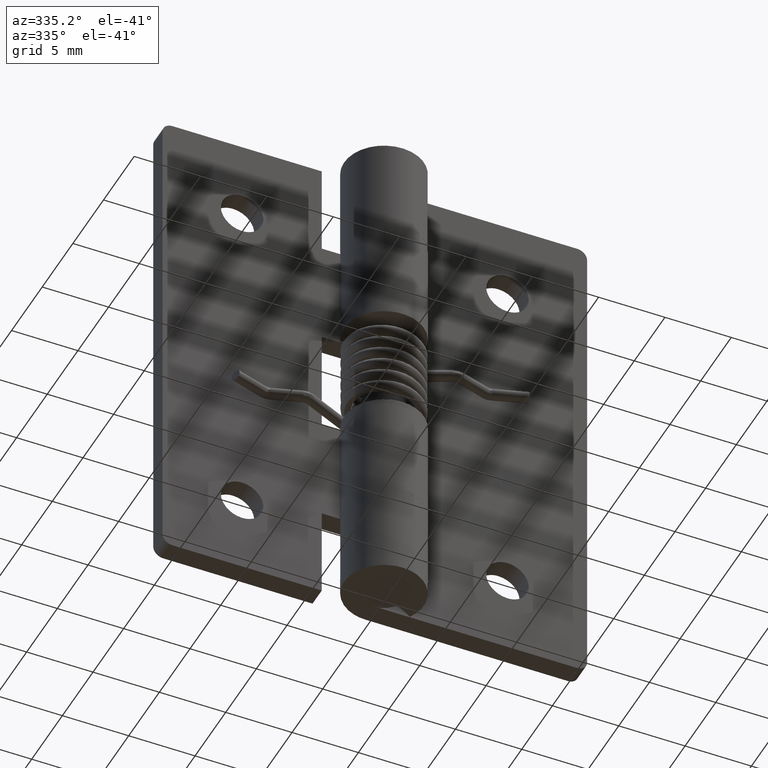
[diagram: clean part render]
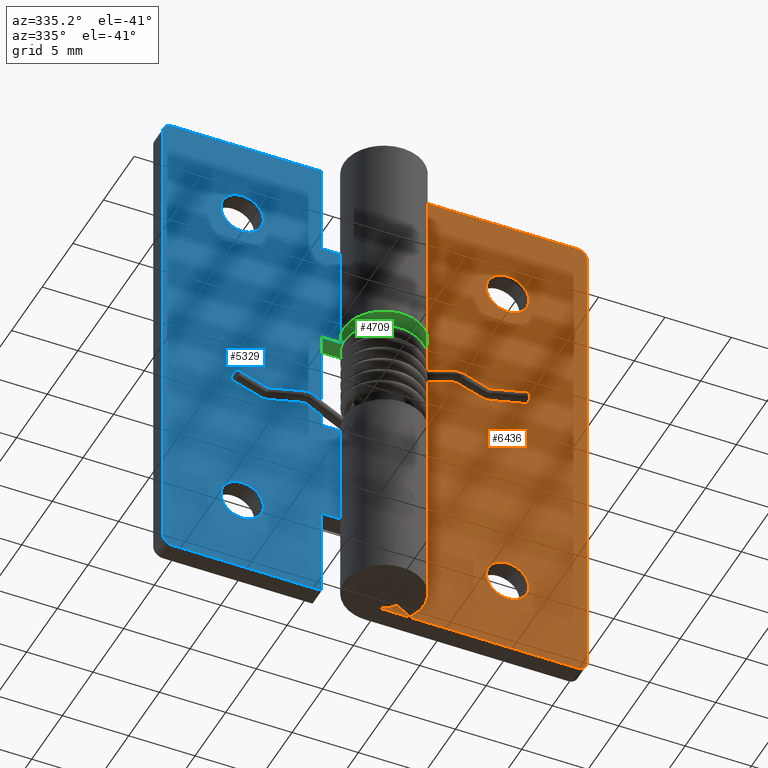
[diagram: same view with three faces highlighted in distinct colors, each labeled with its STEP entity id]
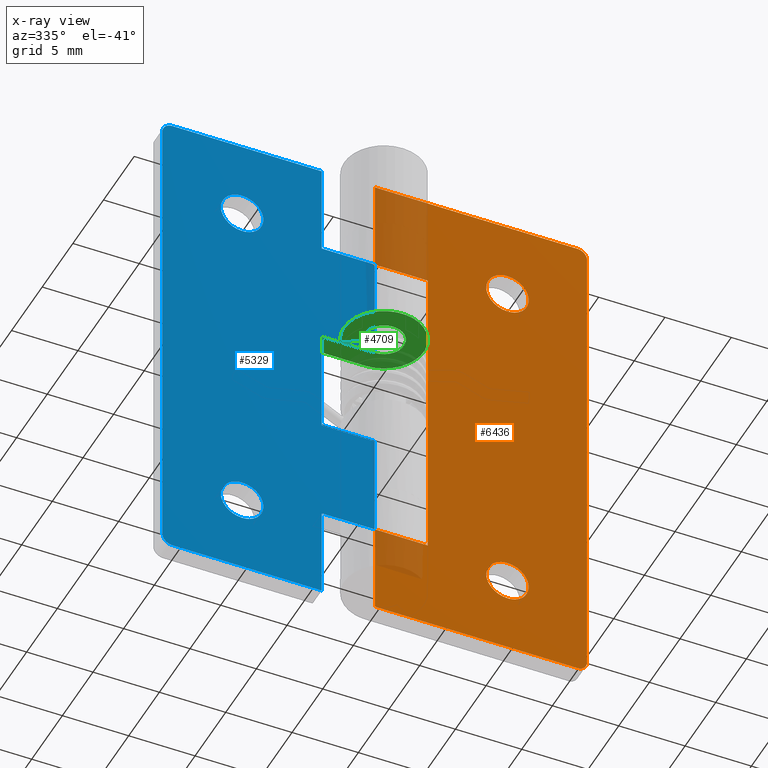
[diagram: x-ray of the same camera — body ghosted, the three highlighted faces saturated]
A machine part, auxiliary view with three faces highlighted in distinct colors.
The next image is the same camera in x-ray (body ghosted, the three faces saturated) — at least one of them is partly hidden behind the body in this view.
Their STEP definitions:

[orange] entity #6436 — the highlighted face is a freeform B-spline surface patch.
#5427=CARTESIAN_POINT('',(11.588815242173940,1.500000000000000,6.188854775517521));
#5428=VERTEX_POINT('',#5427);
#5429=CARTESIAN_POINT('',(10.0,1.500000000000000,4.400000000000000));
#5430=VERTEX_POINT('',#5429);
#5431=CARTESIAN_POINT('',(11.588815242173935,1.500000000000000,6.188854775517521));
#5432=CARTESIAN_POINT('',(11.600000000000007,1.500000000000000,6.094758591510471));
#5433=CARTESIAN_POINT('',(11.600000000000000,1.500000000000000,6.0));
#5434=CARTESIAN_POINT('',(11.600000000000001,1.500000000000000,4.400000000000001));
#5435=CARTESIAN_POINT('',(10.0,1.500000000000000,4.400000000000000));
#5443=(BOUNDED_CURVE()B_SPLINE_CURVE(2,(#5431,#5432,#5433,#5434,#5435),.UNSPECIFIED.,.F.,.U.)B_SPLINE_CURVE_WITH_KNOTS((3,2,3),(0.229562473501453,0.250000000000000,0.500000000000000),.UNSPECIFIED.)CURVE()GEOMETRIC_REPRESENTATION_ITEM()RATIONAL_B_SPLINE_CURVE((0.956026754160070,0.976055948317021,1.0,0.707106781186548,1.0))REPRESENTATION_ITEM(''));
#5444=EDGE_CURVE('',#5428,#5430,#5443,.T.);
#5485=CARTESIAN_POINT('',(8.402984322530001,1.500000000000000,5.902322336662665));
#5486=VERTEX_POINT('',#5485);
#5492=CARTESIAN_POINT('',(10.0,1.500000000000000,4.400000000000000));
#5493=CARTESIAN_POINT('',(8.494870293104919,1.500000000000000,4.400000000000000));
#5494=CARTESIAN_POINT('',(8.402984322530001,1.500000000000000,5.902322336662665));
#5502=(BOUNDED_CURVE()B_SPLINE_CURVE(2,(#5492,#5493,#5494),.UNSPECIFIED.,.F.,.U.)B_SPLINE_CURVE_WITH_KNOTS((3,3),(0.500000000000000,0.739332962224343),.UNSPECIFIED.)CURVE()GEOMETRIC_REPRESENTATION_ITEM()RATIONAL_B_SPLINE_CURVE((1.0,0.719603993303815,0.976072041635428))REPRESENTATION_ITEM(''));
#5503=EDGE_CURVE('',#5430,#5486,#5502,.T.);
#5526=CARTESIAN_POINT('',(10.0,1.500000000000000,7.600000000000000));
#5527=VERTEX_POINT('',#5526);
#5528=CARTESIAN_POINT('',(10.0,1.500000000000000,7.600000000000000));
#5529=CARTESIAN_POINT('',(11.421079241402021,1.500000000000001,7.599999999999999));
#5530=CARTESIAN_POINT('',(11.588815242173933,1.500000000000000,6.188854775517521));
#5538=(BOUNDED_CURVE()B_SPLINE_CURVE(2,(#5528,#5529,#5530),.UNSPECIFIED.,.F.,.U.)B_SPLINE_CURVE_WITH_KNOTS((3,3),(0.0,0.229562473501453),.UNSPECIFIED.)CURVE()GEOMETRIC_REPRESENTATION_ITEM()RATIONAL_B_SPLINE_CURVE((1.0,0.731050832869526,0.956026754160070))REPRESENTATION_ITEM(''));
#5539=EDGE_CURVE('',#5527,#5428,#5538,.T.);
#5541=CARTESIAN_POINT('',(8.402984322530001,1.500000000000000,5.902322336662665));
#5542=CARTESIAN_POINT('',(8.399999999999999,1.500000000000000,5.951115578640466));
#5543=CARTESIAN_POINT('',(8.400000000000000,1.500000000000000,6.0));
#5544=CARTESIAN_POINT('',(8.400000000000000,1.500000000000000,7.600000000000000));
#5545=CARTESIAN_POINT('',(10.0,1.500000000000000,7.600000000000000));
#5553=(BOUNDED_CURVE()B_SPLINE_CURVE(2,(#5541,#5542,#5543,#5544,#5545),.UNSPECIFIED.,.F.,.U.)B_SPLINE_CURVE_WITH_KNOTS((3,2,3),(0.739332962224343,0.750000000000000,1.0),.UNSPECIFIED.)CURVE()GEOMETRIC_REPRESENTATION_ITEM()RATIONAL_B_SPLINE_CURVE((0.976072041635428,0.987502787882733,1.0,0.707106781186548,1.0))REPRESENTATION_ITEM(''));
#5554=EDGE_CURVE('',#5486,#5527,#5553,.T.);
#5613=CARTESIAN_POINT('',(11.588815242173940,1.500000000000000,32.188854775517520));
#5614=VERTEX_POINT('',#5613);
#5615=CARTESIAN_POINT('',(10.0,1.500000000000000,30.399999999999999));
#5616=VERTEX_POINT('',#5615);
#5617=CARTESIAN_POINT('',(11.588815242173935,1.500000000000000,32.188854775517520));
#5618=CARTESIAN_POINT('',(11.600000000000007,1.500000000000000,32.094758591510470));
#5619=CARTESIAN_POINT('',(11.600000000000000,1.500000000000000,32.0));
#5620=CARTESIAN_POINT('',(11.600000000000001,1.500000000000000,30.400000000000002));
#5621=CARTESIAN_POINT('',(10.0,1.500000000000000,30.399999999999999));
#5629=(BOUNDED_CURVE()B_SPLINE_CURVE(2,(#5617,#5618,#5619,#5620,#5621),.UNSPECIFIED.,.F.,.U.)B_SPLINE_CURVE_WITH_KNOTS((3,2,3),(0.229562473501453,0.250000000000000,0.500000000000000),.UNSPECIFIED.)CURVE()GEOMETRIC_REPRESENTATION_ITEM()RATIONAL_B_SPLINE_CURVE((0.956026754160070,0.976055948317021,1.0,0.707106781186548,1.0))REPRESENTATION_ITEM(''));
#5630=EDGE_CURVE('',#5614,#5616,#5629,.T.);
#5671=CARTESIAN_POINT('',(8.402984322530003,1.500000000000000,31.902322336662671));
#5672=VERTEX_POINT('',#5671);
#5678=CARTESIAN_POINT('',(10.0,1.500000000000000,30.399999999999999));
#5679=CARTESIAN_POINT('',(8.494870293104919,1.500000000000000,30.399999999999999));
#5680=CARTESIAN_POINT('',(8.402984322530003,1.500000000000000,31.902322336662671));
#5688=(BOUNDED_CURVE()B_SPLINE_CURVE(2,(#5678,#5679,#5680),.UNSPECIFIED.,.F.,.U.)B_SPLINE_CURVE_WITH_KNOTS((3,3),(0.500000000000000,0.739332962224343),.UNSPECIFIED.)CURVE()GEOMETRIC_REPRESENTATION_ITEM()RATIONAL_B_SPLINE_CURVE((1.0,0.719603993303815,0.976072041635428))REPRESENTATION_ITEM(''));
#5689=EDGE_CURVE('',#5616,#5672,#5688,.T.);
#5712=CARTESIAN_POINT('',(10.0,1.500000000000000,33.600000000000001));
#5713=VERTEX_POINT('',#5712);
#5714=CARTESIAN_POINT('',(10.0,1.500000000000000,33.600000000000001));
#5715=CARTESIAN_POINT('',(11.421079241402019,1.500000000000000,33.600000000000001));
#5716=CARTESIAN_POINT('',(11.588815242173935,1.500000000000000,32.188854775517520));
#5724=(BOUNDED_CURVE()B_SPLINE_CURVE(2,(#5714,#5715,#5716),.UNSPECIFIED.,.F.,.U.)B_SPLINE_CURVE_WITH_KNOTS((3,3),(0.0,0.229562473501453),.UNSPECIFIED.)CURVE()GEOMETRIC_REPRESENTATION_ITEM()RATIONAL_B_SPLINE_CURVE((1.0,0.731050832869527,0.956026754160070))REPRESENTATION_ITEM(''));
#5725=EDGE_CURVE('',#5713,#5614,#5724,.T.);
#5727=CARTESIAN_POINT('',(8.402984322530003,1.500000000000000,31.902322336662671));
#5728=CARTESIAN_POINT('',(8.400000000000002,1.500000000000000,31.951115578640469));
#5729=CARTESIAN_POINT('',(8.400000000000000,1.500000000000000,32.0));
#5730=CARTESIAN_POINT('',(8.400000000000000,1.500000000000000,33.600000000000001));
#5731=CARTESIAN_POINT('',(10.0,1.500000000000000,33.600000000000001));
#5739=(BOUNDED_CURVE()B_SPLINE_CURVE(2,(#5727,#5728,#5729,#5730,#5731),.UNSPECIFIED.,.F.,.U.)B_SPLINE_CURVE_WITH_KNOTS((3,2,3),(0.739332962224344,0.750000000000000,1.0),.UNSPECIFIED.)CURVE()GEOMETRIC_REPRESENTATION_ITEM()RATIONAL_B_SPLINE_CURVE((0.976072041635429,0.987502787882733,1.0,0.707106781186548,1.0))REPRESENTATION_ITEM(''));
#5740=EDGE_CURVE('',#5672,#5713,#5739,.T.);
#5791=CARTESIAN_POINT('',(16.0,1.500000000000055,37.250000000000000));
#5792=VERTEX_POINT('',#5791);
#5793=CARTESIAN_POINT('',(15.250000000000000,1.500000000000055,38.0));
#5794=VERTEX_POINT('',#5793);
#5795=CARTESIAN_POINT('',(16.0,1.500000000000055,37.250000000000000));
#5796=CARTESIAN_POINT('',(15.999999999999998,1.500000000000055,38.0));
#5797=CARTESIAN_POINT('',(15.250000000000000,1.500000000000055,38.0));
#5805=(BOUNDED_CURVE()B_SPLINE_CURVE(2,(#5795,#5796,#5797),.UNSPECIFIED.,.F.,.U.)CURVE()GEOMETRIC_REPRESENTATION_ITEM()QUASI_UNIFORM_CURVE()RATIONAL_B_SPLINE_CURVE((1.0,0.707106781186548,1.0))REPRESENTATION_ITEM(''));
#5806=EDGE_CURVE('',#5792,#5794,#5805,.T.);
#5852=CARTESIAN_POINT('',(15.250000000000000,1.500000000000000,0.0));
#5853=VERTEX_POINT('',#5852);
#5854=CARTESIAN_POINT('',(16.0,1.500000000000055,0.750000000000000));
#5855=VERTEX_POINT('',#5854);
#5856=CARTESIAN_POINT('',(15.250000000000000,1.500000000000000,0.0));
#5857=CARTESIAN_POINT('',(15.999999999999998,1.500000000000055,0.0));
#5858=CARTESIAN_POINT('',(16.0,1.500000000000055,0.750000000000000));
#5866=(BOUNDED_CURVE()B_SPLINE_CURVE(2,(#5856,#5857,#5858),.UNSPECIFIED.,.F.,.U.)CURVE()GEOMETRIC_REPRESENTATION_ITEM()QUASI_UNIFORM_CURVE()RATIONAL_B_SPLINE_CURVE((1.0,0.707106781186548,1.0))REPRESENTATION_ITEM(''));
#5867=EDGE_CURVE('',#5853,#5855,#5866,.T.);
#5934=CARTESIAN_POINT('',(0.0,1.500000000000000,6.999992000000000));
#5935=VERTEX_POINT('',#5934);
#5955=CARTESIAN_POINT('',(4.0,1.499999999999946,6.999992000000000));
#5956=VERTEX_POINT('',#5955);
#5957=CARTESIAN_POINT('',(0.0,1.500000000000000,6.999992000000000));
#5958=CARTESIAN_POINT('',(4.0,1.499999999999946,6.999992000000000));
#5959=QUASI_UNIFORM_CURVE('',1,(#5957,#5958),.UNSPECIFIED.,.F.,.U.);
#5960=EDGE_CURVE('',#5935,#5956,#5959,.T.);
#6012=CARTESIAN_POINT('',(4.0,1.499999999999946,31.0));
#6013=VERTEX_POINT('',#6012);
#6019=CARTESIAN_POINT('',(0.0,1.500000000000000,31.0));
#6020=VERTEX_POINT('',#6019);
#6021=CARTESIAN_POINT('',(4.0,1.499999999999946,31.0));
#6022=CARTESIAN_POINT('',(0.0,1.500000000000000,31.0));
#6023=QUASI_UNIFORM_CURVE('',1,(#6021,#6022),.UNSPECIFIED.,.F.,.U.);
#6024=EDGE_CURVE('',#6013,#6020,#6023,.T.);
#6060=CARTESIAN_POINT('',(4.0,1.499999999999946,6.999992000000000));
#6061=CARTESIAN_POINT('',(4.0,1.499999999999946,31.0));
#6062=QUASI_UNIFORM_CURVE('',1,(#6060,#6061),.UNSPECIFIED.,.F.,.U.);
#6063=EDGE_CURVE('',#5956,#6013,#6062,.T.);
#6080=CARTESIAN_POINT('',(0.0,1.500000000000000,38.0));
#6081=VERTEX_POINT('',#6080);
#6082=CARTESIAN_POINT('',(15.250000000000000,1.500000000000055,38.0));
#6083=CARTESIAN_POINT('',(0.0,1.500000000000000,38.0));
#6084=QUASI_UNIFORM_CURVE('',1,(#6082,#6083),.UNSPECIFIED.,.F.,.U.);
#6085=EDGE_CURVE('',#5794,#6081,#6084,.T.);
#6151=CARTESIAN_POINT('',(0.0,1.500000000000000,0.0));
#6152=VERTEX_POINT('',#6151);
#6153=CARTESIAN_POINT('',(15.250000000000000,1.500000000000000,0.0));
#6154=CARTESIAN_POINT('',(0.0,1.500000000000000,0.0));
#6155=QUASI_UNIFORM_CURVE('',1,(#6153,#6154),.UNSPECIFIED.,.F.,.U.);
#6156=EDGE_CURVE('',#5853,#6152,#6155,.T.);
#6277=CARTESIAN_POINT('',(0.0,1.500000000000000,0.0));
#6278=CARTESIAN_POINT('',(0.0,1.500000000000000,6.999992000000000));
#6279=QUASI_UNIFORM_CURVE('',1,(#6277,#6278),.UNSPECIFIED.,.F.,.U.);
#6280=EDGE_CURVE('',#6152,#5935,#6279,.T.);
#6312=CARTESIAN_POINT('',(0.0,1.500000000000000,31.0));
#6313=CARTESIAN_POINT('',(0.0,1.500000000000000,38.0));
#6314=QUASI_UNIFORM_CURVE('',1,(#6312,#6313),.UNSPECIFIED.,.F.,.U.);
#6315=EDGE_CURVE('',#6020,#6081,#6314,.T.);
#6398=CARTESIAN_POINT('',(16.0,1.500000000000055,0.750000000000000));
#6399=CARTESIAN_POINT('',(16.0,1.500000000000055,37.250000000000000));
#6400=QUASI_UNIFORM_CURVE('',1,(#6398,#6399),.UNSPECIFIED.,.F.,.U.);
#6401=EDGE_CURVE('',#5855,#5792,#6400,.T.);
#6407=CARTESIAN_POINT('',(-0.799199968988895,1.500000000000000,-1.898099926348628));
#6408=CARTESIAN_POINT('',(-0.799199968988895,1.500000000000000,39.898100945588048));
#6409=CARTESIAN_POINT('',(16.799200398142339,1.500000000000000,-1.898099926348628));
#6410=CARTESIAN_POINT('',(16.799200398142339,1.500000000000000,39.898100945588048));
#6411=B_SPLINE_SURFACE_WITH_KNOTS('',1,1,((#6407,#6409),(#6408,#6410)),.UNSPECIFIED.,.F.,.F.,.U.,(2,2),(2,2),(0.0,41.796200871936684),(0.0,17.598400367131230),.UNSPECIFIED.);
#6412=ORIENTED_EDGE('',*,*,#5806,.T.);
#6413=ORIENTED_EDGE('',*,*,#6085,.T.);
#6414=ORIENTED_EDGE('',*,*,#6315,.F.);
#6415=ORIENTED_EDGE('',*,*,#6024,.F.);
#6416=ORIENTED_EDGE('',*,*,#6063,.F.);
#6417=ORIENTED_EDGE('',*,*,#5960,.F.);
#6418=ORIENTED_EDGE('',*,*,#6280,.F.);
#6419=ORIENTED_EDGE('',*,*,#6156,.F.);
#6420=ORIENTED_EDGE('',*,*,#5867,.T.);
#6421=ORIENTED_EDGE('',*,*,#6401,.T.);
#6422=EDGE_LOOP('',(#6412,#6413,#6414,#6415,#6416,#6417,#6418,#6419,#6420,#6421));
#6423=FACE_OUTER_BOUND('',#6422,.T.);
#6424=ORIENTED_EDGE('',*,*,#5689,.T.);
#6425=ORIENTED_EDGE('',*,*,#5740,.T.);
#6426=ORIENTED_EDGE('',*,*,#5725,.T.);
#6427=ORIENTED_EDGE('',*,*,#5630,.T.);
#6428=EDGE_LOOP('',(#6424,#6425,#6426,#6427));
#6429=FACE_BOUND('',#6428,.T.);
#6430=ORIENTED_EDGE('',*,*,#5503,.T.);
#6431=ORIENTED_EDGE('',*,*,#5554,.T.);
#6432=ORIENTED_EDGE('',*,*,#5539,.T.);
#6433=ORIENTED_EDGE('',*,*,#5444,.T.);
#6434=EDGE_LOOP('',(#6430,#6431,#6432,#6433));
#6435=FACE_BOUND('',#6434,.T.);
#6436=ADVANCED_FACE('',(#6423,#6429,#6435),#6411,.F.);

[blue] entity #5329 — the highlighted face is a freeform B-spline surface patch.
#4204=CARTESIAN_POINT('',(-8.411184757826064,1.500000000000000,6.188854775517521));
#4205=VERTEX_POINT('',#4204);
#4206=CARTESIAN_POINT('',(-10.0,1.500000000000000,4.400000000000000));
#4207=VERTEX_POINT('',#4206);
#4208=CARTESIAN_POINT('',(-8.411184757826064,1.500000000000000,6.188854775517521));
#4209=CARTESIAN_POINT('',(-8.400000000000000,1.500000000000000,6.094758591510471));
#4210=CARTESIAN_POINT('',(-8.400000000000000,1.500000000000000,6.0));
#4211=CARTESIAN_POINT('',(-8.400000000000000,1.500000000000000,4.400000000000001));
#4212=CARTESIAN_POINT('',(-10.0,1.500000000000000,4.400000000000000));
#4220=(BOUNDED_CURVE()B_SPLINE_CURVE(2,(#4208,#4209,#4210,#4211,#4212),.UNSPECIFIED.,.F.,.U.)B_SPLINE_CURVE_WITH_KNOTS((3,2,3),(0.229562473501453,0.250000000000000,0.500000000000000),.UNSPECIFIED.)CURVE()GEOMETRIC_REPRESENTATION_ITEM()RATIONAL_B_SPLINE_CURVE((0.956026754160070,0.976055948317021,1.0,0.707106781186548,1.0))REPRESENTATION_ITEM(''));
#4221=EDGE_CURVE('',#4205,#4207,#4220,.T.);
#4262=CARTESIAN_POINT('',(-11.597015677470001,1.500000000000000,5.902322336662665));
#4263=VERTEX_POINT('',#4262);
#4269=CARTESIAN_POINT('',(-10.0,1.500000000000000,4.400000000000000));
#4270=CARTESIAN_POINT('',(-11.505129706895083,1.500000000000000,4.400000000000000));
#4271=CARTESIAN_POINT('',(-11.597015677469999,1.500000000000000,5.902322336662665));
#4279=(BOUNDED_CURVE()B_SPLINE_CURVE(2,(#4269,#4270,#4271),.UNSPECIFIED.,.F.,.U.)B_SPLINE_CURVE_WITH_KNOTS((3,3),(0.500000000000000,0.739332962224343),.UNSPECIFIED.)CURVE()GEOMETRIC_REPRESENTATION_ITEM()RATIONAL_B_SPLINE_CURVE((1.0,0.719603993303815,0.976072041635428))REPRESENTATION_ITEM(''));
#4280=EDGE_CURVE('',#4207,#4263,#4279,.T.);
#4303=CARTESIAN_POINT('',(-10.0,1.500000000000000,7.600000000000000));
#4304=VERTEX_POINT('',#4303);
#4305=CARTESIAN_POINT('',(-10.0,1.500000000000000,7.600000000000000));
#4306=CARTESIAN_POINT('',(-8.578920758597981,1.500000000000001,7.599999999999999));
#4307=CARTESIAN_POINT('',(-8.411184757826064,1.500000000000000,6.188854775517521));
#4315=(BOUNDED_CURVE()B_SPLINE_CURVE(2,(#4305,#4306,#4307),.UNSPECIFIED.,.F.,.U.)B_SPLINE_CURVE_WITH_KNOTS((3,3),(0.0,0.229562473501453),.UNSPECIFIED.)CURVE()GEOMETRIC_REPRESENTATION_ITEM()RATIONAL_B_SPLINE_CURVE((1.0,0.731050832869526,0.956026754160070))REPRESENTATION_ITEM(''));
#4316=EDGE_CURVE('',#4304,#4205,#4315,.T.);
#4318=CARTESIAN_POINT('',(-11.597015677469999,1.500000000000000,5.902322336662665));
#4319=CARTESIAN_POINT('',(-11.599999999999998,1.500000000000000,5.951115578640466));
#4320=CARTESIAN_POINT('',(-11.600000000000000,1.500000000000000,6.0));
#4321=CARTESIAN_POINT('',(-11.600000000000001,1.500000000000000,7.600000000000000));
#4322=CARTESIAN_POINT('',(-10.0,1.500000000000000,7.600000000000000));
#4330=(BOUNDED_CURVE()B_SPLINE_CURVE(2,(#4318,#4319,#4320,#4321,#4322),.UNSPECIFIED.,.F.,.U.)B_SPLINE_CURVE_WITH_KNOTS((3,2,3),(0.739332962224343,0.750000000000000,1.0),.UNSPECIFIED.)CURVE()GEOMETRIC_REPRESENTATION_ITEM()RATIONAL_B_SPLINE_CURVE((0.976072041635428,0.987502787882733,1.0,0.707106781186548,1.0))REPRESENTATION_ITEM(''));
#4331=EDGE_CURVE('',#4263,#4304,#4330,.T.);
#4390=CARTESIAN_POINT('',(-8.411184757826064,1.500000000000000,32.188854775517527));
#4391=VERTEX_POINT('',#4390);
#4392=CARTESIAN_POINT('',(-10.0,1.500000000000000,30.399999999999999));
#4393=VERTEX_POINT('',#4392);
#4394=CARTESIAN_POINT('',(-8.411184757826064,1.500000000000000,32.188854775517527));
#4395=CARTESIAN_POINT('',(-8.400000000000000,1.500000000000000,32.094758591510470));
#4396=CARTESIAN_POINT('',(-8.400000000000000,1.500000000000000,32.0));
#4397=CARTESIAN_POINT('',(-8.400000000000000,1.500000000000000,30.400000000000002));
#4398=CARTESIAN_POINT('',(-10.0,1.500000000000000,30.399999999999999));
#4406=(BOUNDED_CURVE()B_SPLINE_CURVE(2,(#4394,#4395,#4396,#4397,#4398),.UNSPECIFIED.,.F.,.U.)B_SPLINE_CURVE_WITH_KNOTS((3,2,3),(0.229562473501453,0.250000000000000,0.500000000000000),.UNSPECIFIED.)CURVE()GEOMETRIC_REPRESENTATION_ITEM()RATIONAL_B_SPLINE_CURVE((0.956026754160070,0.976055948317021,1.0,0.707106781186548,1.0))REPRESENTATION_ITEM(''));
#4407=EDGE_CURVE('',#4391,#4393,#4406,.T.);
#4448=CARTESIAN_POINT('',(-11.597015677470001,1.500000000000000,31.902322336662671));
#4449=VERTEX_POINT('',#4448);
#4455=CARTESIAN_POINT('',(-10.0,1.500000000000000,30.399999999999999));
#4456=CARTESIAN_POINT('',(-11.505129706895083,1.500000000000000,30.399999999999999));
#4457=CARTESIAN_POINT('',(-11.597015677469999,1.500000000000000,31.902322336662671));
#4465=(BOUNDED_CURVE()B_SPLINE_CURVE(2,(#4455,#4456,#4457),.UNSPECIFIED.,.F.,.U.)B_SPLINE_CURVE_WITH_KNOTS((3,3),(0.500000000000000,0.739332962224343),.UNSPECIFIED.)CURVE()GEOMETRIC_REPRESENTATION_ITEM()RATIONAL_B_SPLINE_CURVE((1.0,0.719603993303815,0.976072041635428))REPRESENTATION_ITEM(''));
#4466=EDGE_CURVE('',#4393,#4449,#4465,.T.);
#4489=CARTESIAN_POINT('',(-10.0,1.500000000000000,33.600000000000001));
#4490=VERTEX_POINT('',#4489);
#4491=CARTESIAN_POINT('',(-10.0,1.500000000000000,33.600000000000001));
#4492=CARTESIAN_POINT('',(-8.578920758597981,1.500000000000001,33.600000000000001));
#4493=CARTESIAN_POINT('',(-8.411184757826064,1.500000000000000,32.188854775517527));
#4501=(BOUNDED_CURVE()B_SPLINE_CURVE(2,(#4491,#4492,#4493),.UNSPECIFIED.,.F.,.U.)B_SPLINE_CURVE_WITH_KNOTS((3,3),(0.0,0.229562473501453),.UNSPECIFIED.)CURVE()GEOMETRIC_REPRESENTATION_ITEM()RATIONAL_B_SPLINE_CURVE((1.0,0.731050832869526,0.956026754160070))REPRESENTATION_ITEM(''));
#4502=EDGE_CURVE('',#4490,#4391,#4501,.T.);
#4504=CARTESIAN_POINT('',(-11.597015677469999,1.500000000000001,31.902322336662671));
#4505=CARTESIAN_POINT('',(-11.600000000000001,1.500000000000000,31.951115578640461));
#4506=CARTESIAN_POINT('',(-11.600000000000000,1.500000000000000,32.0));
#4507=CARTESIAN_POINT('',(-11.600000000000001,1.500000000000000,33.600000000000001));
#4508=CARTESIAN_POINT('',(-10.0,1.500000000000000,33.600000000000001));
#4516=(BOUNDED_CURVE()B_SPLINE_CURVE(2,(#4504,#4505,#4506,#4507,#4508),.UNSPECIFIED.,.F.,.U.)B_SPLINE_CURVE_WITH_KNOTS((3,2,3),(0.739332962224344,0.750000000000000,1.0),.UNSPECIFIED.)CURVE()GEOMETRIC_REPRESENTATION_ITEM()RATIONAL_B_SPLINE_CURVE((0.976072041635429,0.987502787882733,1.0,0.707106781186548,1.0))REPRESENTATION_ITEM(''));
#4517=EDGE_CURVE('',#4449,#4490,#4516,.T.);
#4589=CARTESIAN_POINT('',(-4.0,1.499999999999946,15.0));
#4590=VERTEX_POINT('',#4589);
#4596=CARTESIAN_POINT('',(-5.742883E-016,1.500000000000000,15.0));
#4597=VERTEX_POINT('',#4596);
#4598=CARTESIAN_POINT('',(-4.0,1.499999999999946,15.0));
#4599=CARTESIAN_POINT('',(-5.742883E-016,1.500000000000000,15.0));
#4600=QUASI_UNIFORM_CURVE('',1,(#4598,#4599),.UNSPECIFIED.,.F.,.U.);
#4601=EDGE_CURVE('',#4590,#4597,#4600,.T.);
#4637=CARTESIAN_POINT('',(-5.742883E-016,1.500000000000000,23.0));
#4638=VERTEX_POINT('',#4637);
#4639=CARTESIAN_POINT('',(-4.0,1.499999999999946,23.0));
#4640=VERTEX_POINT('',#4639);
#4641=CARTESIAN_POINT('',(-5.742883E-016,1.500000000000000,23.0));
#4642=CARTESIAN_POINT('',(-4.0,1.499999999999946,23.0));
#4643=QUASI_UNIFORM_CURVE('',1,(#4641,#4642),.UNSPECIFIED.,.F.,.U.);
#4644=EDGE_CURVE('',#4638,#4640,#4643,.T.);
#4715=CARTESIAN_POINT('',(-4.0,1.499999999999946,23.0));
#4716=CARTESIAN_POINT('',(-4.0,1.499999999999946,15.0));
#4717=QUASI_UNIFORM_CURVE('',1,(#4715,#4716),.UNSPECIFIED.,.F.,.U.);
#4718=EDGE_CURVE('',#4640,#4590,#4717,.T.);
#4735=CARTESIAN_POINT('',(-4.0,1.499999999999946,38.0));
#4736=VERTEX_POINT('',#4735);
#4737=CARTESIAN_POINT('',(-4.0,1.499999999999946,31.0));
#4738=VERTEX_POINT('',#4737);
#4739=CARTESIAN_POINT('',(-4.0,1.499999999999946,38.0));
#4740=CARTESIAN_POINT('',(-4.0,1.499999999999946,31.0));
#4741=QUASI_UNIFORM_CURVE('',1,(#4739,#4740),.UNSPECIFIED.,.F.,.U.);
#4742=EDGE_CURVE('',#4736,#4738,#4741,.T.);
#4800=CARTESIAN_POINT('',(-5.742883E-016,1.500000000000000,31.0));
#4801=VERTEX_POINT('',#4800);
#4802=CARTESIAN_POINT('',(-4.0,1.499999999999946,31.0));
#4803=CARTESIAN_POINT('',(-5.742883E-016,1.500000000000000,31.0));
#4804=QUASI_UNIFORM_CURVE('',1,(#4802,#4803),.UNSPECIFIED.,.F.,.U.);
#4805=EDGE_CURVE('',#4738,#4801,#4804,.T.);
#4841=CARTESIAN_POINT('',(-5.742883E-016,1.500000000000000,6.999992000000000));
#4842=VERTEX_POINT('',#4841);
#4843=CARTESIAN_POINT('',(-4.0,1.499999999999946,6.999992000000000));
#4844=VERTEX_POINT('',#4843);
#4845=CARTESIAN_POINT('',(-5.742883E-016,1.500000000000000,6.999992000000000));
#4846=CARTESIAN_POINT('',(-4.0,1.499999999999946,6.999992000000000));
#4847=QUASI_UNIFORM_CURVE('',1,(#4845,#4846),.UNSPECIFIED.,.F.,.U.);
#4848=EDGE_CURVE('',#4842,#4844,#4847,.T.);
#4919=CARTESIAN_POINT('',(-4.0,1.499999999999946,0.0));
#4920=VERTEX_POINT('',#4919);
#4921=CARTESIAN_POINT('',(-4.0,1.499999999999946,6.999992000000000));
#4922=CARTESIAN_POINT('',(-4.0,1.499999999999946,0.0));
#4923=QUASI_UNIFORM_CURVE('',1,(#4921,#4922),.UNSPECIFIED.,.F.,.U.);
#4924=EDGE_CURVE('',#4844,#4920,#4923,.T.);
#4956=CARTESIAN_POINT('',(-15.250000000000000,1.500000000000000,38.0));
#4957=VERTEX_POINT('',#4956);
#4958=CARTESIAN_POINT('',(-16.0,1.500000000000055,37.250000000000000));
#4959=VERTEX_POINT('',#4958);
#4960=CARTESIAN_POINT('',(-15.250000000000000,1.500000000000055,38.0));
#4961=CARTESIAN_POINT('',(-15.999999999999998,1.500000000000055,38.0));
#4962=CARTESIAN_POINT('',(-16.0,1.500000000000055,37.250000000000000));
#4970=(BOUNDED_CURVE()B_SPLINE_CURVE(2,(#4960,#4961,#4962),.UNSPECIFIED.,.F.,.U.)CURVE()GEOMETRIC_REPRESENTATION_ITEM()QUASI_UNIFORM_CURVE()RATIONAL_B_SPLINE_CURVE((1.0,0.707106781186548,1.0))REPRESENTATION_ITEM(''));
#4971=EDGE_CURVE('',#4957,#4959,#4970,.T.);
#5017=CARTESIAN_POINT('',(-16.0,1.500000000000055,0.750000000000000));
#5018=VERTEX_POINT('',#5017);
#5019=CARTESIAN_POINT('',(-15.250000000000000,1.500000000000055,0.0));
#5020=VERTEX_POINT('',#5019);
#5021=CARTESIAN_POINT('',(-16.0,1.500000000000055,0.750000000000000));
#5022=CARTESIAN_POINT('',(-15.999999999999998,1.500000000000055,0.0));
#5023=CARTESIAN_POINT('',(-15.250000000000000,1.500000000000055,0.0));
#5031=(BOUNDED_CURVE()B_SPLINE_CURVE(2,(#5021,#5022,#5023),.UNSPECIFIED.,.F.,.U.)CURVE()GEOMETRIC_REPRESENTATION_ITEM()QUASI_UNIFORM_CURVE()RATIONAL_B_SPLINE_CURVE((1.0,0.707106781186548,1.0))REPRESENTATION_ITEM(''));
#5032=EDGE_CURVE('',#5018,#5020,#5031,.T.);
#5076=CARTESIAN_POINT('',(-16.0,1.500000000000055,0.750000000000000));
#5077=CARTESIAN_POINT('',(-16.0,1.500000000000055,37.250000000000000));
#5078=QUASI_UNIFORM_CURVE('',1,(#5076,#5077),.UNSPECIFIED.,.F.,.U.);
#5079=EDGE_CURVE('',#5018,#4959,#5078,.T.);
#5095=CARTESIAN_POINT('',(-4.0,1.499999999999946,0.0));
#5096=CARTESIAN_POINT('',(-15.250000000000000,1.500000000000055,0.0));
#5097=QUASI_UNIFORM_CURVE('',1,(#5095,#5096),.UNSPECIFIED.,.F.,.U.);
#5098=EDGE_CURVE('',#4920,#5020,#5097,.T.);
#5116=CARTESIAN_POINT('',(-4.0,1.499999999999946,38.0));
#5117=CARTESIAN_POINT('',(-15.250000000000000,1.500000000000000,38.0));
#5118=QUASI_UNIFORM_CURVE('',1,(#5116,#5117),.UNSPECIFIED.,.F.,.U.);
#5119=EDGE_CURVE('',#4736,#4957,#5118,.T.);
#5152=CARTESIAN_POINT('',(-5.742883E-016,1.500000000000000,6.999992000000000));
#5153=CARTESIAN_POINT('',(-5.742883E-016,1.500000000000000,15.0));
#5154=QUASI_UNIFORM_CURVE('',1,(#5152,#5153),.UNSPECIFIED.,.F.,.U.);
#5155=EDGE_CURVE('',#4842,#4597,#5154,.T.);
#5183=CARTESIAN_POINT('',(-5.742883E-016,1.500000000000000,23.0));
#5184=CARTESIAN_POINT('',(-5.742883E-016,1.500000000000000,31.0));
#5185=QUASI_UNIFORM_CURVE('',1,(#5183,#5184),.UNSPECIFIED.,.F.,.U.);
#5186=EDGE_CURVE('',#4638,#4801,#5185,.T.);
#5296=CARTESIAN_POINT('',(-16.799199968988891,1.500000000000000,-1.898099926348628));
#5297=CARTESIAN_POINT('',(-16.799199968988891,1.500000000000000,39.898100945588048));
#5298=CARTESIAN_POINT('',(0.799200398142336,1.500000000000000,-1.898099926348628));
#5299=CARTESIAN_POINT('',(0.799200398142336,1.500000000000000,39.898100945588048));
#5300=B_SPLINE_SURFACE_WITH_KNOTS('',1,1,((#5296,#5298),(#5297,#5299)),.UNSPECIFIED.,.F.,.F.,.U.,(2,2),(2,2),(0.0,41.796200871936684),(0.0,17.598400367131230),.UNSPECIFIED.);
#5301=ORIENTED_EDGE('',*,*,#4644,.F.);
#5302=ORIENTED_EDGE('',*,*,#5186,.T.);
#5303=ORIENTED_EDGE('',*,*,#4805,.F.);
#5304=ORIENTED_EDGE('',*,*,#4742,.F.);
#5305=ORIENTED_EDGE('',*,*,#5119,.T.);
#5306=ORIENTED_EDGE('',*,*,#4971,.T.);
#5307=ORIENTED_EDGE('',*,*,#5079,.F.);
#5308=ORIENTED_EDGE('',*,*,#5032,.T.);
#5309=ORIENTED_EDGE('',*,*,#5098,.F.);
#5310=ORIENTED_EDGE('',*,*,#4924,.F.);
#5311=ORIENTED_EDGE('',*,*,#4848,.F.);
#5312=ORIENTED_EDGE('',*,*,#5155,.T.);
#5313=ORIENTED_EDGE('',*,*,#4601,.F.);
#5314=ORIENTED_EDGE('',*,*,#4718,.F.);
#5315=EDGE_LOOP('',(#5301,#5302,#5303,#5304,#5305,#5306,#5307,#5308,#5309,#5310,#5311,#5312,#5313,#5314));
#5316=FACE_OUTER_BOUND('',#5315,.T.);
#5317=ORIENTED_EDGE('',*,*,#4466,.T.);
#5318=ORIENTED_EDGE('',*,*,#4517,.T.);
#5319=ORIENTED_EDGE('',*,*,#4502,.T.);
#5320=ORIENTED_EDGE('',*,*,#4407,.T.);
#5321=EDGE_LOOP('',(#5317,#5318,#5319,#5320));
#5322=FACE_BOUND('',#5321,.T.);
#5323=ORIENTED_EDGE('',*,*,#4280,.T.);
#5324=ORIENTED_EDGE('',*,*,#4331,.T.);
#5325=ORIENTED_EDGE('',*,*,#4316,.T.);
#5326=ORIENTED_EDGE('',*,*,#4221,.T.);
#5327=EDGE_LOOP('',(#5323,#5324,#5325,#5326));
#5328=FACE_BOUND('',#5327,.T.);
#5329=ADVANCED_FACE('',(#5316,#5322,#5328),#5300,.F.);

[green] entity #4709 — the highlighted face is a freeform B-spline surface patch.
#4632=CARTESIAN_POINT('',(3.349597953149333,-3.299492213343027,23.0));
#4633=CARTESIAN_POINT('',(-4.349647698770538,-3.299492213343027,23.0));
#4634=CARTESIAN_POINT('',(3.349597953149333,3.299690264672844,23.0));
#4635=CARTESIAN_POINT('',(-4.349647698770538,3.299690264672844,23.0));
#4636=B_SPLINE_SURFACE_WITH_KNOTS('',1,1,((#4632,#4634),(#4633,#4635)),.UNSPECIFIED.,.F.,.F.,.U.,(2,2),(2,2),(0.0,7.699245651919870),(0.0,6.599182478015871),.UNSPECIFIED.);
#4637=CARTESIAN_POINT('',(-5.742883E-016,1.500000000000000,23.0));
#4638=VERTEX_POINT('',#4637);
#4639=CARTESIAN_POINT('',(-4.0,1.499999999999946,23.0));
#4640=VERTEX_POINT('',#4639);
#4641=CARTESIAN_POINT('',(-5.742883E-016,1.500000000000000,23.0));
#4642=CARTESIAN_POINT('',(-4.0,1.499999999999946,23.0));
#4643=QUASI_UNIFORM_CURVE('',1,(#4641,#4642),.UNSPECIFIED.,.F.,.U.);
#4644=EDGE_CURVE('',#4638,#4640,#4643,.T.);
#4645=ORIENTED_EDGE('',*,*,#4644,.T.);
#4646=CARTESIAN_POINT('',(-4.0,3.0,23.0));
#4647=VERTEX_POINT('',#4646);
#4648=CARTESIAN_POINT('',(-4.0,3.0,23.0));
#4649=CARTESIAN_POINT('',(-4.0,1.499999999999946,23.0));
#4650=QUASI_UNIFORM_CURVE('',1,(#4648,#4649),.UNSPECIFIED.,.F.,.U.);
#4651=EDGE_CURVE('',#4647,#4640,#4650,.T.);
#4652=ORIENTED_EDGE('',*,*,#4651,.F.);
#4653=CARTESIAN_POINT('',(0.0,3.0,23.0));
#4654=VERTEX_POINT('',#4653);
#4655=CARTESIAN_POINT('',(-4.0,3.0,23.0));
#4656=CARTESIAN_POINT('',(0.0,3.0,23.0));
#4657=QUASI_UNIFORM_CURVE('',1,(#4655,#4656),.UNSPECIFIED.,.F.,.U.);
#4658=EDGE_CURVE('',#4647,#4654,#4657,.T.);
#4659=ORIENTED_EDGE('',*,*,#4658,.T.);
#4660=CARTESIAN_POINT('',(-2.626309197333780,1.450000000000000,23.0));
#4661=VERTEX_POINT('',#4660);
#4662=CARTESIAN_POINT('',(0.0,3.0,23.0));
#4663=CARTESIAN_POINT('',(2.290598042424809,3.000000000000000,23.0));
#4664=CARTESIAN_POINT('',(2.894028888043301,0.790314364775724,23.0));
#4665=CARTESIAN_POINT('',(3.497459733661795,-1.419371270448553,23.0));
#4666=CARTESIAN_POINT('',(1.524795068197690,-2.583602136552763,23.0));
#4667=CARTESIAN_POINT('',(-0.447869597266411,-3.747833002656972,23.0));
#4668=CARTESIAN_POINT('',(-2.090650590886090,-2.151552952364325,23.0));
#4669=CARTESIAN_POINT('',(-3.733431584505770,-0.555272902071677,23.0));
#4670=CARTESIAN_POINT('',(-2.626309197333780,1.449999999999999,23.0));
#4678=(BOUNDED_CURVE()B_SPLINE_CURVE(2,(#4662,#4663,#4664,#4665,#4666,#4667,#4668,#4669,#4670),.UNSPECIFIED.,.F.,.U.)B_SPLINE_CURVE_WITH_KNOTS((3,2,2,2,3),(0.0,0.250000000000000,0.500000000000000,0.750000000000000,1.0),.UNSPECIFIED.)CURVE()GEOMETRIC_REPRESENTATION_ITEM()RATIONAL_B_SPLINE_CURVE((1.0,0.794807562115481,1.0,0.794807562115481,1.0,0.794807562115481,1.0,0.794807562115481,1.0))REPRESENTATION_ITEM(''));
#4679=EDGE_CURVE('',#4654,#4661,#4678,.T.);
#4680=ORIENTED_EDGE('',*,*,#4679,.T.);
#4681=CARTESIAN_POINT('',(-1.313154598666890,0.725000000000000,23.0));
#4682=VERTEX_POINT('',#4681);
#4683=CARTESIAN_POINT('',(-2.626309197333780,1.450000000000000,23.0));
#4684=CARTESIAN_POINT('',(-1.313154598666890,0.725000000000000,23.0));
#4685=QUASI_UNIFORM_CURVE('',1,(#4683,#4684),.UNSPECIFIED.,.F.,.U.);
#4686=EDGE_CURVE('',#4661,#4682,#4685,.T.);
#4687=ORIENTED_EDGE('',*,*,#4686,.T.);
#4688=CARTESIAN_POINT('',(0.0,1.500000000000000,23.0));
#4689=CARTESIAN_POINT('',(1.145299021212404,1.500000000000001,22.999999999999996));
#4690=CARTESIAN_POINT('',(1.447014444021650,0.395157182387863,23.0));
#4691=CARTESIAN_POINT('',(1.748729866830897,-0.709685635224275,22.999999999999996));
#4692=CARTESIAN_POINT('',(0.762397534098846,-1.291801068276381,23.0));
#4693=CARTESIAN_POINT('',(-0.223934798633205,-1.873916501328487,22.999999999999996));
#4694=CARTESIAN_POINT('',(-1.045325295443045,-1.075776476182163,23.0));
#4695=CARTESIAN_POINT('',(-1.866715792252885,-0.277636451035838,22.999999999999996));
#4696=CARTESIAN_POINT('',(-1.313154598666890,0.724999999999999,23.0));
#4704=(BOUNDED_CURVE()B_SPLINE_CURVE(2,(#4688,#4689,#4690,#4691,#4692,#4693,#4694,#4695,#4696),.UNSPECIFIED.,.F.,.U.)B_SPLINE_CURVE_WITH_KNOTS((3,2,2,2,3),(0.0,0.250000000000000,0.500000000000000,0.750000000000000,1.0),.UNSPECIFIED.)CURVE()GEOMETRIC_REPRESENTATION_ITEM()RATIONAL_B_SPLINE_CURVE((1.0,0.794807562115481,1.0,0.794807562115481,1.0,0.794807562115481,1.0,0.794807562115481,1.0))REPRESENTATION_ITEM(''));
#4705=EDGE_CURVE('',#4638,#4682,#4704,.T.);
#4706=ORIENTED_EDGE('',*,*,#4705,.F.);
#4707=EDGE_LOOP('',(#4645,#4652,#4659,#4680,#4687,#4706));
#4708=FACE_OUTER_BOUND('',#4707,.T.);
#4709=ADVANCED_FACE('',(#4708),#4636,.T.);